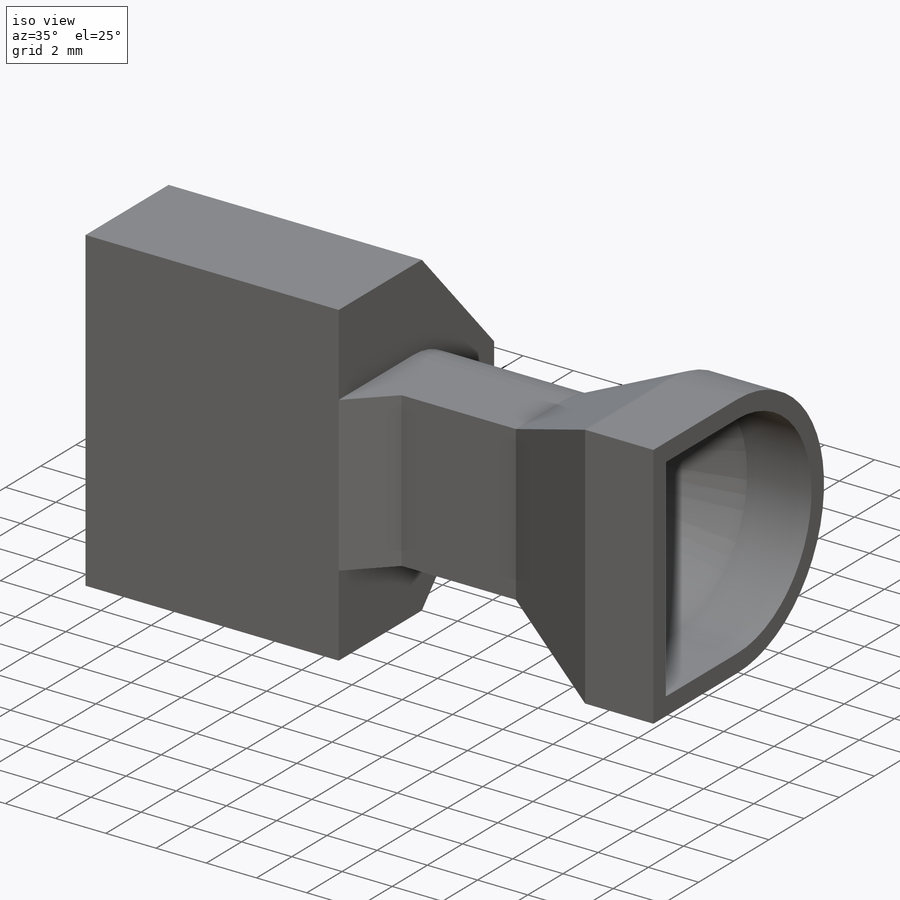
[diagram: iso view]
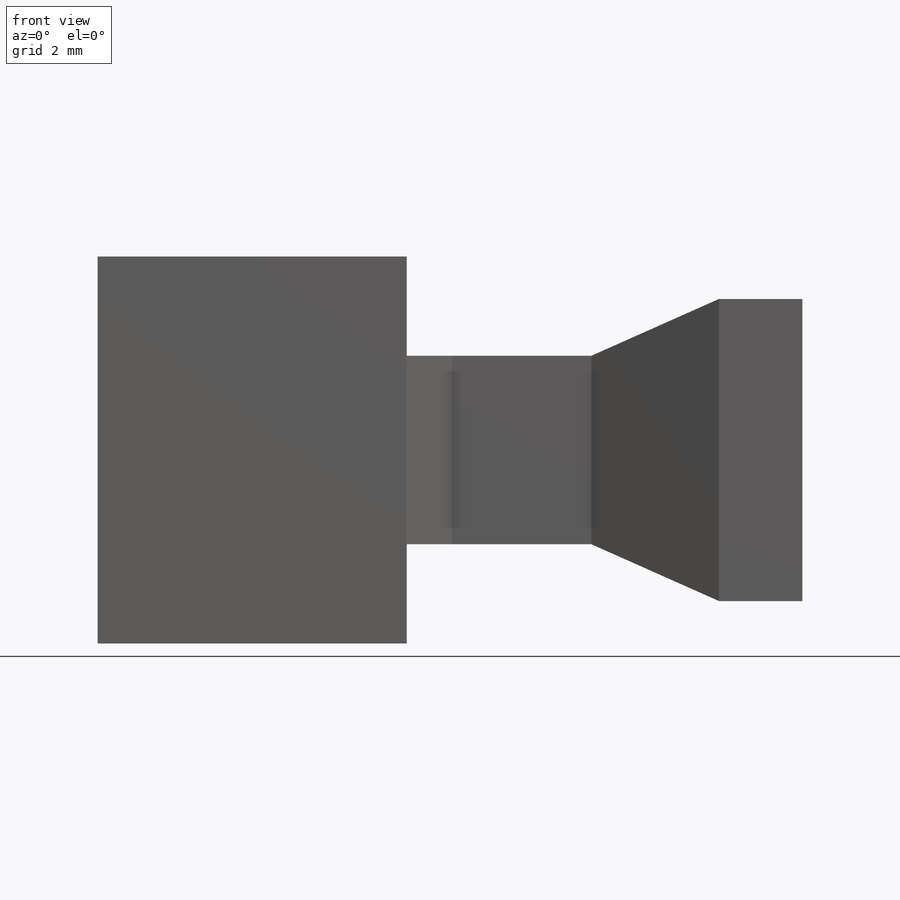
[diagram: front view]
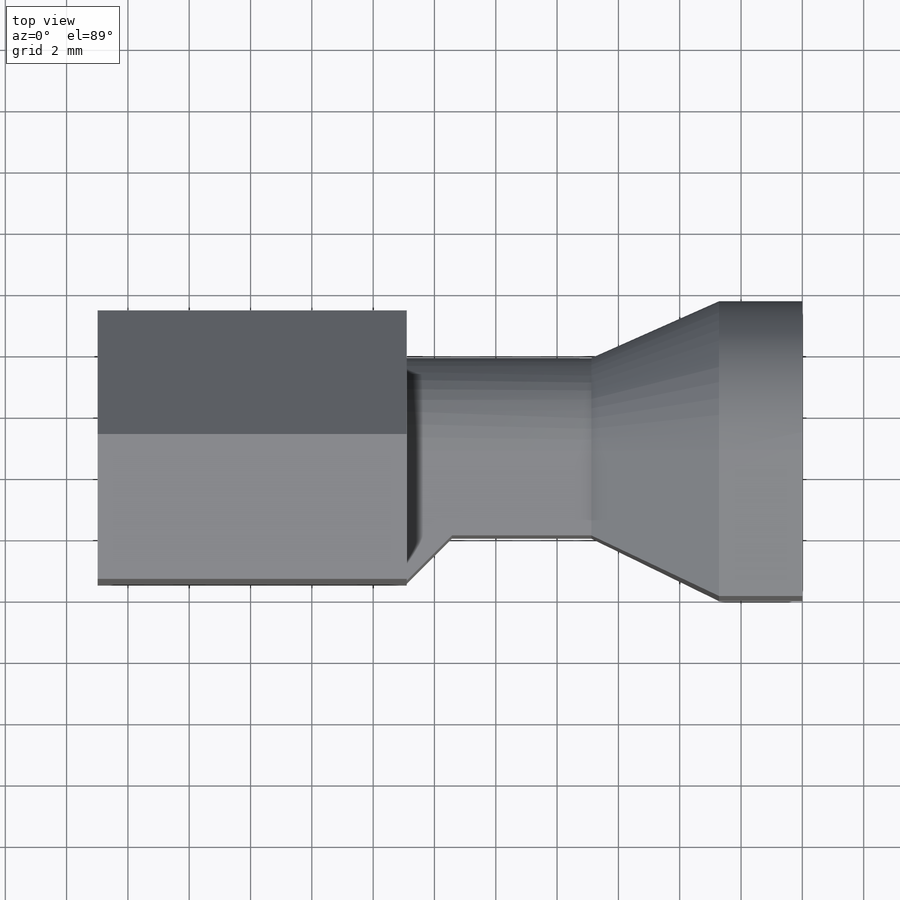
[diagram: top view]
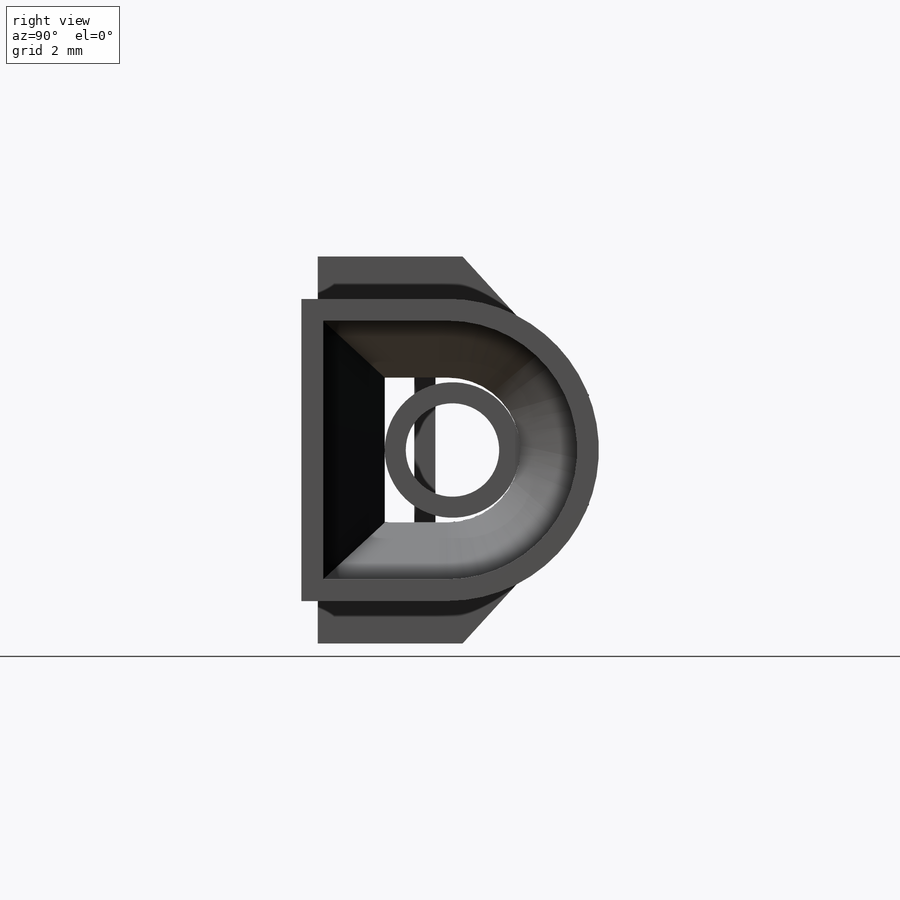
[diagram: right view]
SOLIDWORKS PART (.sldprt)
format: sldprt  version: not decoded by parser v0  size: 357,376 bytes
history: native  units: mm
features: sketch x7, extrude x6, chamfer x2, material x1, shell x1, plane x1 (+12 scaffold rows collapsed)
feature tree (30):
  scaffold x12  (default folders/planes/origin — collapsed)
  material  "Material <not specified>"
  sketch  "Sketch1"  dims[c1.D3=2.5527mm c1.D1=9.8552mm c1.D2=4.7752mm c1.D4=2.4511mm c2.D1=0.0mm]
  extrude  "Extrude1"  Depth=6.8834mm
  chamfer  "Chamfer2"  Distance=4.1656mm Angle=25.720457deg
  chamfer  "Chamfer1"  Distance=4.1656mm Angle=23.994896deg
  sketch  "Sketch2"  dims[c1.D2=1.9939mm c1.D1=2.4511mm c1.D3=6.1468mm c1.D4=2.0066mm c1.D5=2.7686mm c1.D6=1.9939mm c2.D1=6.1468mm]
  extrude  "Extrude2"  Depth=6.0198mm
  sketch  "Sketch3"  dims[c1.D1=0.889mm c1.D2=9.8552mm c1.D3=4.7752mm c1.D4=5.6642mm c2.D1=12.6238mm c2.D2=4.7244mm c2.D3=3.6068mm c2.D4=4.5085mm c3.D4=~47.614045deg c3.D5=8.8392mm c3.D6=0.5334mm]
  extrude  "Extrude3"  Depth=10.0838mm
  shell  "Shell1"  Thickness=0.7112mm
  plane  "Plane2"  Offset=7.39mm
  sketch  "Sketch7"  dims[c1.D2=1.27mm c1.D3=1.4605mm c1.D4=1.46mm c1.D1=4.4196mm c2.D2=4.4196mm c2.D1=3.04mm c2.D5=0.2286mm c3.D1=0.0mm]
  extrude  "Extrude6"  Depth=7.112mm
  sketch  "Эскиз2"  dims[D1=3.048mm]
  sketch  "Эскиз3"  dims[D1=6.5532mm D2=0.6858mm D3=0.9652mm]
  extrude  "Extrude7"  Depth=9.1144mm
  sketch  "Эскиз4"  dims[c1.D1=1.4732mm c1.D2=1.4732mm c2.D2=45.0deg]
  extrude  "Extrude8"  [1 undecoded]
decode coverage: 15 of 16 modeling features carry decoded parameters
note: ~ marks probable driven/reference dimensions
note: 1 parameter value undecoded
note: suppression state not decoded; provenance and decode notes live in map.json
